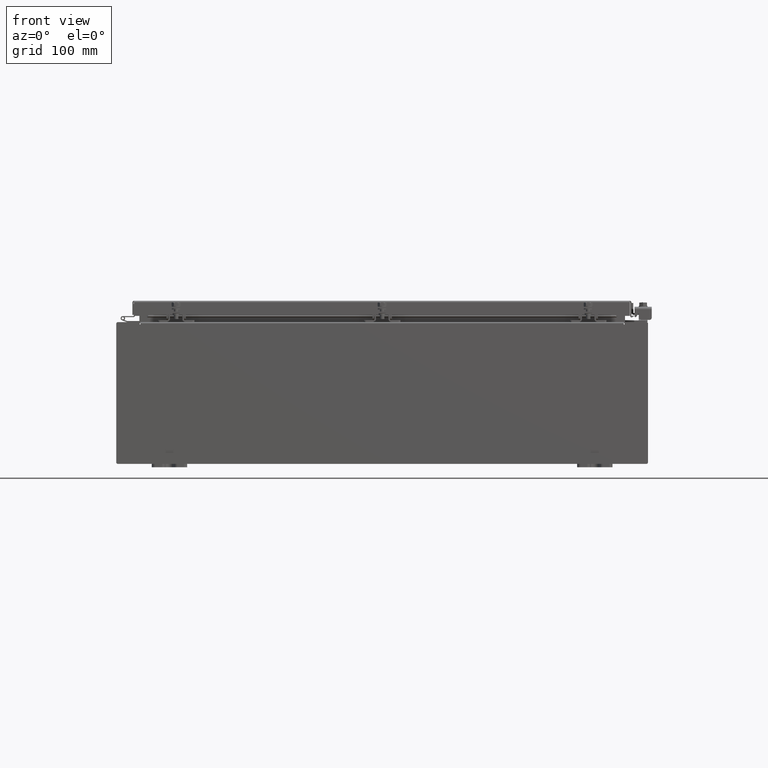
[diagram: clean part render]
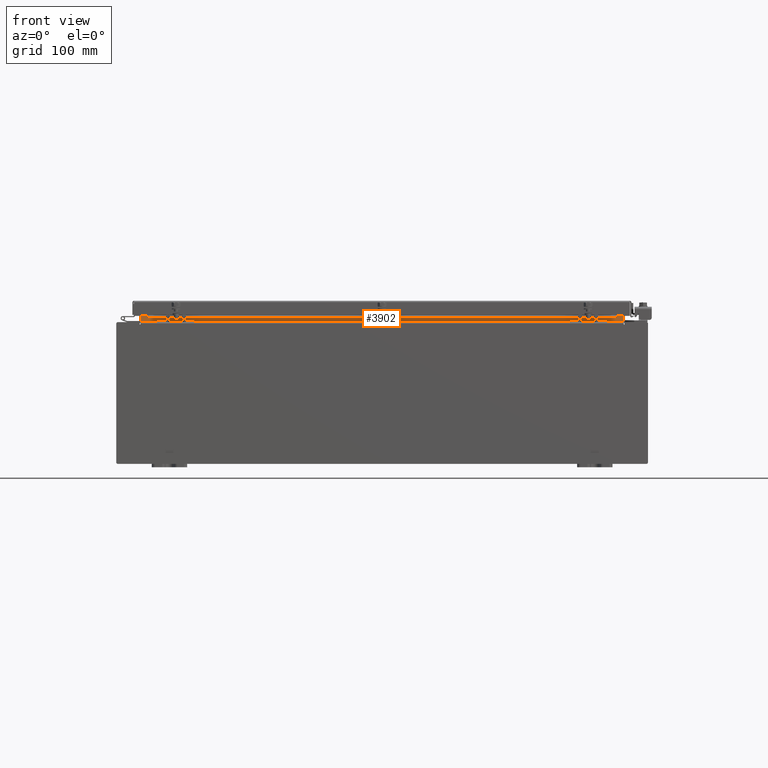
[diagram: same view with one face highlighted and labeled with its STEP entity id]
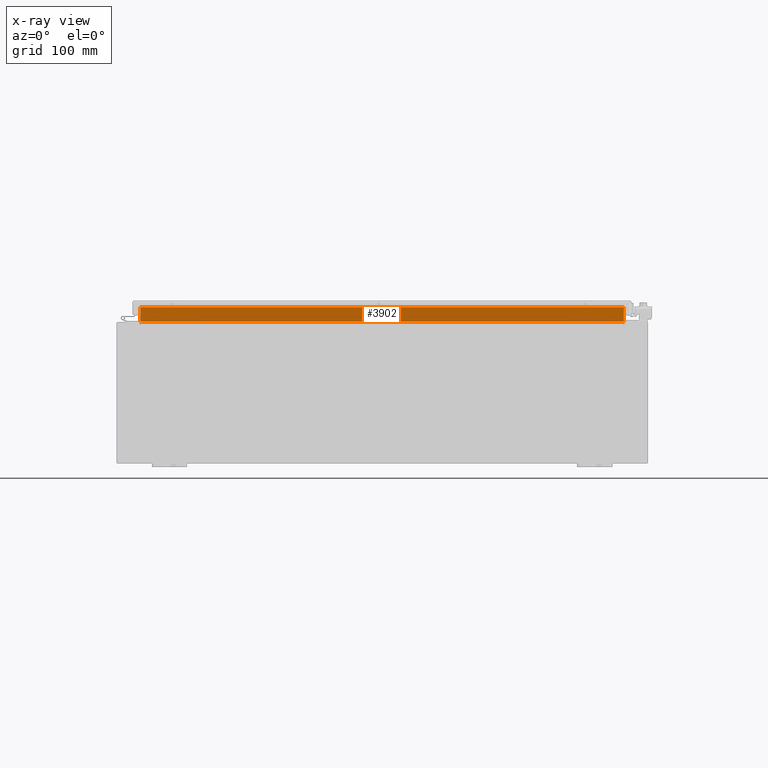
[diagram: x-ray of the same camera — body ghosted, the highlighted face saturated]
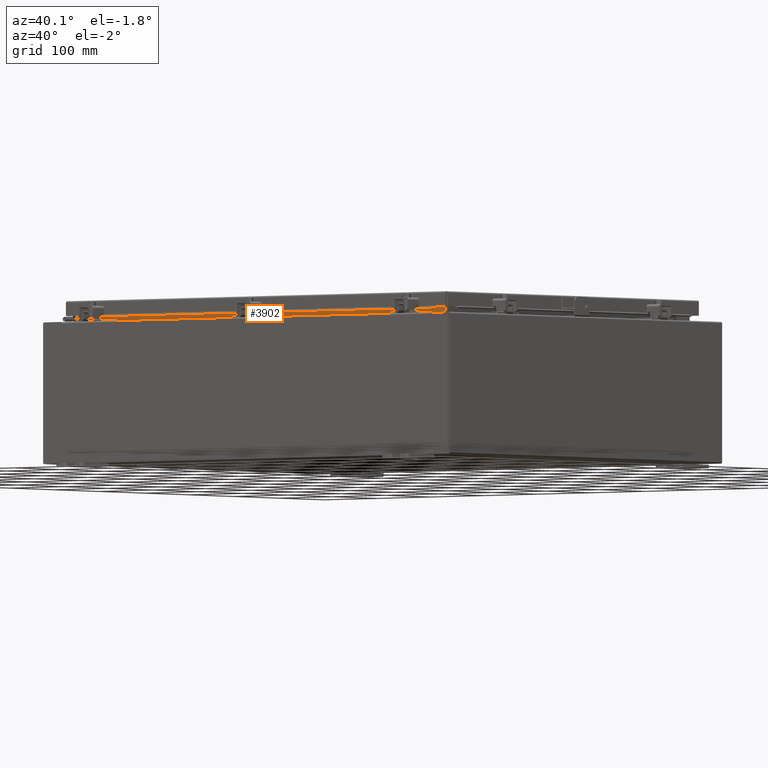
[diagram: same view with one face highlighted and labeled with its STEP entity id]
A machine part, front view. The second image highlights one B-rep face of the part: STEP entity #3902.
The next image is the same camera in x-ray: the body ghosted, the highlighted face saturated — about 0% of this face is hidden behind the body in this view.
A second angle (auxiliary view) of the same face is appended — the face is thin or edge-on in the first view.
In plain terms, the highlighted planar face has unit normal (0, -1, 0).
Its self-contained STEP definition (entity closure, byte-faithful):
#114 = VERTEX_POINT ( 'NONE', #6194 ) ;
#1328 = ORIENTED_EDGE ( 'NONE', *, *, #23625, .F. ) ;
#1649 = LINE ( 'NONE', #30250, #19264 ) ;
#2081 = ORIENTED_EDGE ( 'NONE', *, *, #17935, .F. ) ;
#2214 = AXIS2_PLACEMENT_3D ( 'NONE', #20968, #20656, #20530 ) ;
#3902 = ADVANCED_FACE ( 'NONE', ( #21596 ), #23381, .T. ) ;
#4931 = EDGE_LOOP ( 'NONE', ( #26197, #6702, #1328, #2081 ) ) ;
#6194 = CARTESIAN_POINT ( 'NONE',  ( -13.63719999999999800, -1.300299999999999300, 4.837600000000003700 ) ) ;
#6702 = ORIENTED_EDGE ( 'NONE', *, *, #24592, .F. ) ;
#9088 = CARTESIAN_POINT ( 'NONE',  ( -13.63719999999999800, -1.300299999999999800, 4.013000000000003500 ) ) ;
#9089 = DIRECTION ( 'NONE',  ( -0.0000000000000000000, -0.0000000000000000000, 1.000000000000000000 ) ) ;
#9763 = VECTOR ( 'NONE', #17896, 39.37007874015748100 ) ;
#10299 = VERTEX_POINT ( 'NONE', #25242 ) ;
#11698 = DIRECTION ( 'NONE',  ( 1.000000000000000000, 0.0000000000000000000, -2.003232330437526000E-017 ) ) ;
#12781 = DIRECTION ( 'NONE',  ( -1.000000000000000000, -0.0000000000000000000, -0.0000000000000000000 ) ) ;
#14549 = EDGE_CURVE ( 'NONE', #114, #30018, #29836, .T. ) ;
#15378 = CARTESIAN_POINT ( 'NONE',  ( -13.63719999999999800, -1.300299999999999800, 4.000000000000004400 ) ) ;
#15416 = LINE ( 'NONE', #24226, #21338 ) ;
#17896 = DIRECTION ( 'NONE',  ( -0.0000000000000000000, -0.0000000000000000000, -1.000000000000000000 ) ) ;
#17935 = EDGE_CURVE ( 'NONE', #30018, #27645, #15416, .T. ) ;
#18540 = VECTOR ( 'NONE', #9089, 39.37007874015748100 ) ;
#19264 = VECTOR ( 'NONE', #12781, 39.37007874015748100 ) ;
#20530 = DIRECTION ( 'NONE',  ( 0.0000000000000000000, -0.0000000000000000000, 1.000000000000000000 ) ) ;
#20656 = DIRECTION ( 'NONE',  ( 0.0000000000000000000, 1.000000000000000000, 0.0000000000000000000 ) ) ;
#20968 = CARTESIAN_POINT ( 'NONE',  ( 0.0000000000000000000, -1.300299999999999800, 0.0000000000000000000 ) ) ;
#21338 = VECTOR ( 'NONE', #11698, 39.37007874015748100 ) ;
#21596 = FACE_OUTER_BOUND ( 'NONE', #4931, .T. ) ;
#21965 = CARTESIAN_POINT ( 'NONE',  ( 13.63720000000000000, -1.300299999999999800, 4.013000000000003500 ) ) ;
#23381 = PLANE ( 'NONE',  #2214 ) ;
#23625 = EDGE_CURVE ( 'NONE', #27645, #10299, #31155, .T. ) ;
#24141 = CARTESIAN_POINT ( 'NONE',  ( 13.63720000000000400, -1.300299999999999800, 4.925300000000004500 ) ) ;
#24226 = CARTESIAN_POINT ( 'NONE',  ( -13.63719999999999800, -1.300299999999999800, 4.013000000000003500 ) ) ;
#24592 = EDGE_CURVE ( 'NONE', #10299, #114, #1649, .T. ) ;
#25242 = CARTESIAN_POINT ( 'NONE',  ( 13.63720000000000400, -1.300299999999999800, 4.837600000000003700 ) ) ;
#26197 = ORIENTED_EDGE ( 'NONE', *, *, #14549, .F. ) ;
#27645 = VERTEX_POINT ( 'NONE', #21965 ) ;
#29836 = LINE ( 'NONE', #15378, #9763 ) ;
#30018 = VERTEX_POINT ( 'NONE', #9088 ) ;
#30250 = CARTESIAN_POINT ( 'NONE',  ( 13.63720000000000400, -1.300299999999999300, 4.837600000000003700 ) ) ;
#31155 = LINE ( 'NONE', #24141, #18540 ) ;